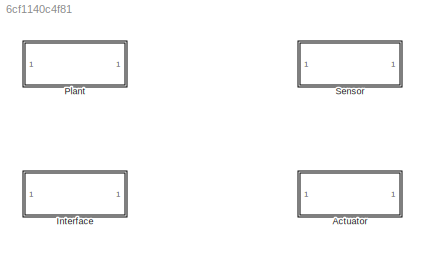
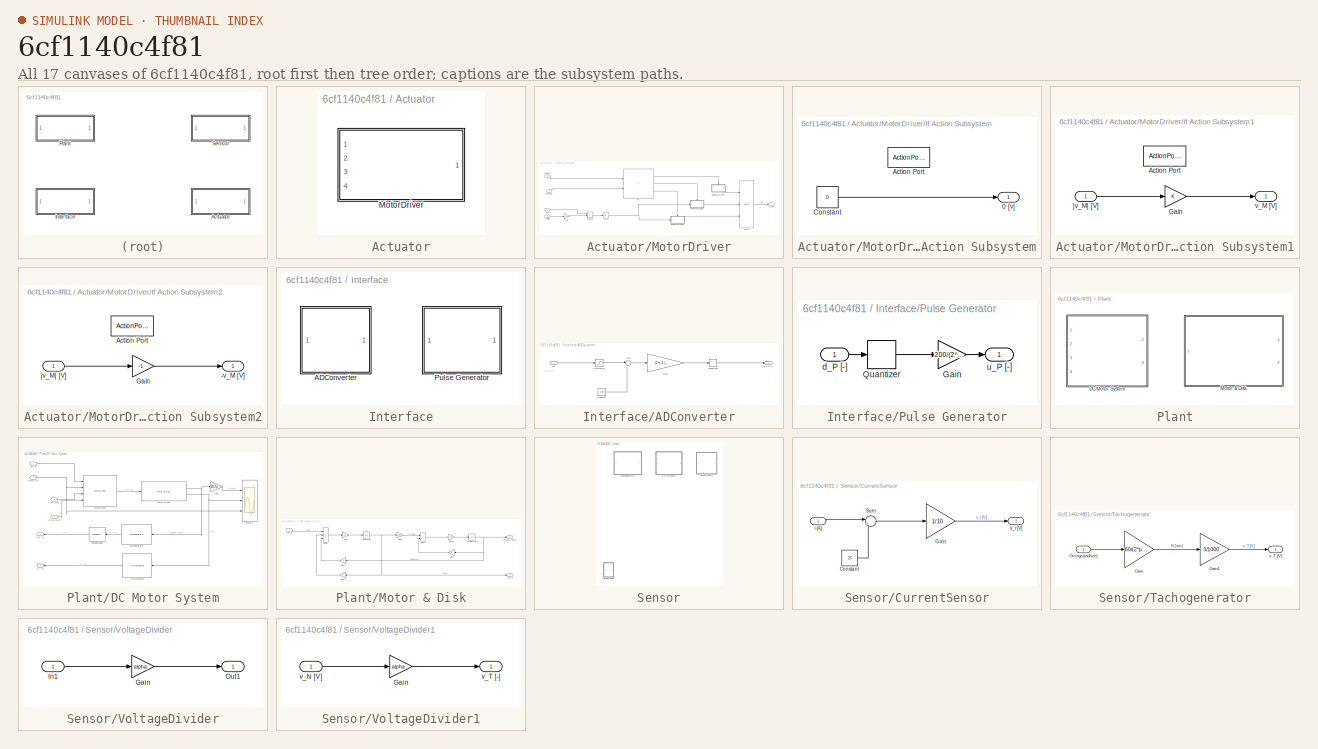
[diagram: thumbnail index - all 17 canvases of the model, root first then tree order]
MODEL slx_6cf1140c4f81
KIND library
CONFIG AbsTol = auto
CONFIG EnableMultiTasking = off
CONFIG FixedStep = auto
CONFIG MaxStep = auto
CONFIG MinStep = auto
CONFIG RelTol = 1e-3
CONFIG SampleTimeConstraint = Unconstrained
CONFIG SolverName = VariableStepAuto
CONFIG StartTime = 0.0
CONFIG StopTime = 10.0
BLOCK [SubSystem] Actuator
  Ports = []
  RequestExecContextInheritance = off
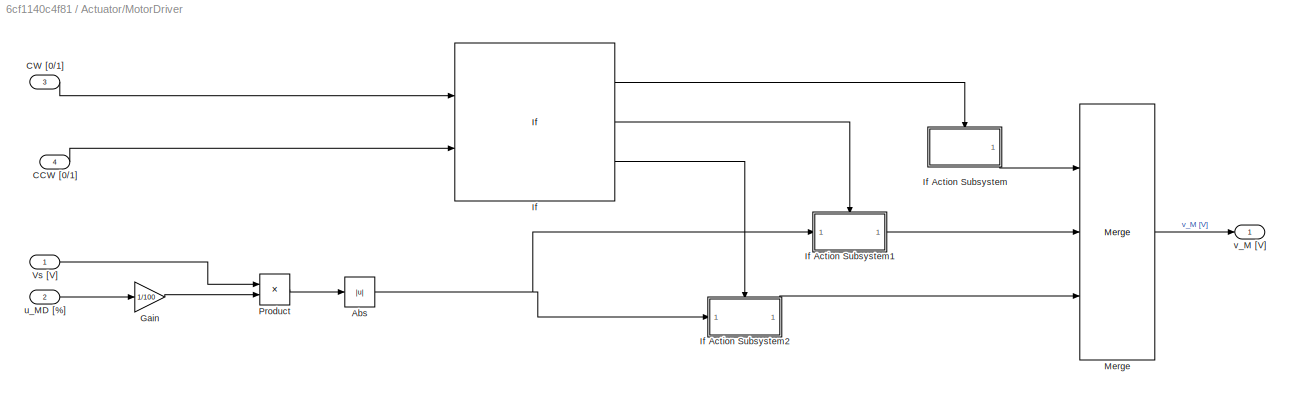
BLOCK [SubSystem] Actuator/MotorDriver
  Ports = [4, 1]
  RequestExecContextInheritance = off
BLOCK [Abs] Actuator/MotorDriver/Abs
  SaturateOnIntegerOverflow = off
BLOCK [Inport] Actuator/MotorDriver/CCW [0//1]
  Port = 4
BLOCK [Inport] Actuator/MotorDriver/CW [0//1]
  Port = 3
BLOCK [Gain] Actuator/MotorDriver/Gain
  Gain = 1/100
BLOCK [If] Actuator/MotorDriver/If
  ElseIfExpressions = u1>u2
  IfExpression = u1==u2
  NumInputs = 2
  Ports = [2, 3]
BLOCK [SubSystem] Actuator/MotorDriver/If Action Subsystem
  Ports = [0, 1, 0, 0, 0, 0, 0, 1]
  RequestExecContextInheritance = off
  TreatAsAtomicUnit = on
BLOCK [Outport] Actuator/MotorDriver/If Action Subsystem/0 [v]
BLOCK [ActionPort] Actuator/MotorDriver/If Action Subsystem/Action Port
BLOCK [Constant] Actuator/MotorDriver/If Action Subsystem/Constant
  Value = 0
BLOCK [SubSystem] Actuator/MotorDriver/If Action Subsystem1
  Ports = [1, 1, 0, 0, 0, 0, 0, 1]
  RequestExecContextInheritance = off
  TreatAsAtomicUnit = on
BLOCK [ActionPort] Actuator/MotorDriver/If Action Subsystem1/Action Port
BLOCK [Gain] Actuator/MotorDriver/If Action Subsystem1/Gain
BLOCK [Outport] Actuator/MotorDriver/If Action Subsystem1/v_M [V]
BLOCK [Inport] Actuator/MotorDriver/If Action Subsystem1/|v_M| [V]
BLOCK [SubSystem] Actuator/MotorDriver/If Action Subsystem2
  Ports = [1, 1, 0, 0, 0, 0, 0, 1]
  RequestExecContextInheritance = off
  TreatAsAtomicUnit = on
BLOCK [Outport] Actuator/MotorDriver/If Action Subsystem2/-v_M [V]
BLOCK [ActionPort] Actuator/MotorDriver/If Action Subsystem2/Action Port
BLOCK [Gain] Actuator/MotorDriver/If Action Subsystem2/Gain
  Gain = -1
BLOCK [Inport] Actuator/MotorDriver/If Action Subsystem2/|v_M| [V]
BLOCK [Merge] Actuator/MotorDriver/Merge
  Inputs = 3
  Ports = [3, 1]
BLOCK [Product] Actuator/MotorDriver/Product
  Ports = [2, 1]
BLOCK [Inport] Actuator/MotorDriver/Vs [V]
BLOCK [Inport] Actuator/MotorDriver/u_MD [%]
  Port = 2
BLOCK [Outport] Actuator/MotorDriver/v_M [V]
BLOCK [SubSystem] Interface
  Ports = []
  RequestExecContextInheritance = off
BLOCK [SubSystem] Interface/ADConverter
  Ports = [1, 1]
  RequestExecContextInheritance = off
BLOCK [Constant] Interface/ADConverter/Constant
  Value = V_min
BLOCK [Gain] Interface/ADConverter/Gain
  Gain = (2^n-1)/(V_max-V_min)
BLOCK [Inport] Interface/ADConverter/In1
BLOCK [Quantizer] Interface/ADConverter/Quantizer
BLOCK [Saturate] Interface/ADConverter/Saturation
  LowerLimit = V_min
  UpperLimit = V_max
BLOCK [Sum] Interface/ADConverter/Sum
  Inputs = |+-
  Ports = [2, 1]
BLOCK [Outport] Interface/ADConverter/d_AD [-]
BLOCK [SubSystem] Interface/Pulse Generator
  Ports = [1, 1]
  RequestExecContextInheritance = off
BLOCK [Gain] Interface/Pulse Generator/Gain
  Gain = 200/(2^n-1)
BLOCK [Quantizer] Interface/Pulse Generator/Quantizer
  QuantizationInterval = 1
BLOCK [Inport] Interface/Pulse Generator/d_P [-]
BLOCK [Outport] Interface/Pulse Generator/u_P [-]
BLOCK [SubSystem] Plant
  Ports = []
  RequestExecContextInheritance = off
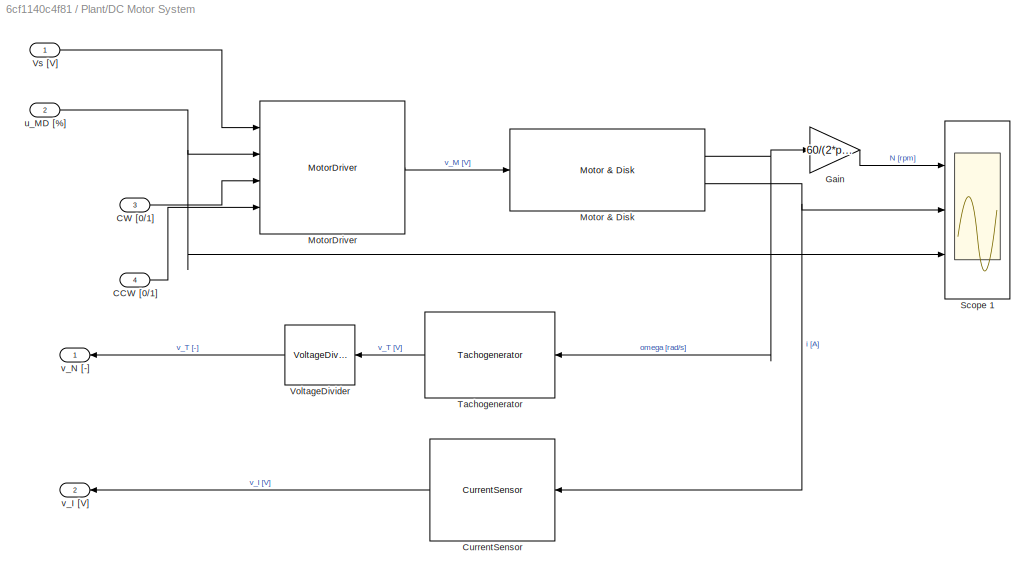
BLOCK [SubSystem] Plant/DC Motor System
  Ports = [4, 2]
  RequestExecContextInheritance = off
BLOCK [Inport] Plant/DC Motor System/CCW [0//1]
  Port = 4
BLOCK [Inport] Plant/DC Motor System/CW [0//1]
  Port = 3
BLOCK [Reference] Plant/DC Motor System/CurrentSensor   REF=$bdroot/Sensor/CurrentSensor
  Ports = [1, 1]
  SourceBlock = $bdroot/Sensor/CurrentSensor
  SourceType = CurrentSensorModel
BLOCK [Gain] Plant/DC Motor System/Gain
  Gain = 60/(2*pi)
BLOCK [Reference] Plant/DC Motor System/Motor & Disk   REF=$bdroot/Plant/Motor & Disk
  Ports = [1, 2]
  SourceBlock = $bdroot/Plant/Motor & Disk
  SourceType = DCMotor&DiskModel
BLOCK [Reference] Plant/DC Motor System/MotorDriver   REF=$bdroot/Actuator/MotorDriver
  Ports = [4, 1]
  SourceBlock = $bdroot/Actuator/MotorDriver
  SourceType = MotorDriverModel
BLOCK [Scope] Plant/DC Motor System/Scope 1
  Floating = off
  NumInputPorts = 3
  Ports = [3]
  ScopeSpecificationString = Simulink.scopes.TimeScopeBlockCfg('CurrentConfiguration', extmgr.ConfigurationSet(extmgr.Configuration('Core','General UI',true),extmgr.Configuration('Core','Source UI',true),extmgr.Configuration('Sources','WiredSimulink',true),extmgr.Configuration('Visuals','Time Domain',true,'SerializedDisplays',{struct('MinYLimReal','-372.58747','MaxYLimReal','3353.28719','YLabelReal','','MinYLimMag',' 0.00000'...<+2634ch>
BLOCK [Reference] Plant/DC Motor System/Tachogenerator   REF=$bdroot/Sensor/Tachogenerator
  Ports = [1, 1]
  SourceBlock = $bdroot/Sensor/Tachogenerator
  SourceType = TachoGeneratorModel
BLOCK [Reference] Plant/DC Motor System/VoltageDivider  REF=$bdroot/Sensor/VoltageDivider
  Ports = [1, 1]
  SourceBlock = $bdroot/Sensor/VoltageDivider
BLOCK [Inport] Plant/DC Motor System/Vs [V]
BLOCK [Inport] Plant/DC Motor System/u_MD [%]
  Port = 2
BLOCK [Outport] Plant/DC Motor System/v_I [V]
  Port = 2
BLOCK [Outport] Plant/DC Motor System/v_N [-]
BLOCK [SubSystem] Plant/Motor & Disk
  Ports = [1, 2]
  RequestExecContextInheritance = off
BLOCK [Gain] Plant/Motor & Disk/Gain
  Gain = 1/L
BLOCK [Gain] Plant/Motor & Disk/Gain1
  Gain = K_tau
BLOCK [Gain] Plant/Motor & Disk/Gain2
  Gain = 1/(J_M+J_I)
BLOCK [Gain] Plant/Motor & Disk/Gain3
  Gain = D
BLOCK [Gain] Plant/Motor & Disk/Gain4
  Gain = K_e
BLOCK [Gain] Plant/Motor & Disk/Gain5
  Gain = R
BLOCK [Integrator] Plant/Motor & Disk/Integrator
  Ports = [1, 1]
BLOCK [Integrator] Plant/Motor & Disk/Integrator1
  Ports = [1, 1]
BLOCK [Sum] Plant/Motor & Disk/Sum
  IconShape = rectangular
  Inputs = +--
  Ports = [3, 1]
BLOCK [Sum] Plant/Motor & Disk/Sum1
  IconShape = rectangular
  Inputs = +-
  Ports = [2, 1]
BLOCK [Outport] Plant/Motor & Disk/i_M[A]
  Port = 2
BLOCK [Outport] Plant/Motor & Disk/omega [rad//s] 
BLOCK [Inport] Plant/Motor & Disk/v_M[V]
BLOCK [SubSystem] Sensor
  Ports = []
  RequestExecContextInheritance = off
BLOCK [SubSystem] Sensor/CurrentSensor
  Ports = [1, 1]
  RequestExecContextInheritance = off
BLOCK [Constant] Sensor/CurrentSensor/Constant
  Value = 25
BLOCK [Gain] Sensor/CurrentSensor/Gain
  Gain = 1/10
BLOCK [Sum] Sensor/CurrentSensor/Sum
  Inputs = |++
  Ports = [2, 1]
BLOCK [Inport] Sensor/CurrentSensor/i [A]
BLOCK [Outport] Sensor/CurrentSensor/v_i [V]
BLOCK [SubSystem] Sensor/Tachogenerator
  Ports = [1, 1]
  RequestExecContextInheritance = off
BLOCK [Gain] Sensor/Tachogenerator/Gain
  Gain = 60/(2*pi)
BLOCK [Gain] Sensor/Tachogenerator/Gain1
  Gain = 3/1000
BLOCK [Inport] Sensor/Tachogenerator/Omega [rad//sec]
BLOCK [Outport] Sensor/Tachogenerator/v_T [V]
BLOCK [SubSystem] Sensor/VoltageDivider
  Ports = [1, 1]
  RequestExecContextInheritance = off
BLOCK [Gain] Sensor/VoltageDivider/Gain
  Gain = alpha
BLOCK [Inport] Sensor/VoltageDivider/In1
BLOCK [Outport] Sensor/VoltageDivider/Out1
BLOCK [SubSystem] Sensor/VoltageDivider1
  Ports = [1, 1]
  RequestExecContextInheritance = off
BLOCK [Gain] Sensor/VoltageDivider1/Gain
  Gain = alpha
BLOCK [Inport] Sensor/VoltageDivider1/v_N [V]
BLOCK [Outport] Sensor/VoltageDivider1/v_T [-]
ANNOTATION Interface/ADConverter: v_in [V}
NET Actuator/MotorDriver/Abs:1 -> Actuator/MotorDriver/If Action Subsystem1:1, Actuator/MotorDriver/If Action Subsystem2:1
LINE Actuator/MotorDriver/CCW [0//1]:1 -> Actuator/MotorDriver/If:2
LINE Actuator/MotorDriver/CW [0//1]:1 -> Actuator/MotorDriver/If:1
LINE Actuator/MotorDriver/Gain:1 -> Actuator/MotorDriver/Product:2
LINE Actuator/MotorDriver/If Action Subsystem/Constant:1 -> Actuator/MotorDriver/If Action Subsystem/0 [v]:1
LINE Actuator/MotorDriver/If Action Subsystem1/Gain:1 -> Actuator/MotorDriver/If Action Subsystem1/v_M [V]:1
LINE Actuator/MotorDriver/If Action Subsystem1/|v_M| [V]:1 -> Actuator/MotorDriver/If Action Subsystem1/Gain:1
LINE Actuator/MotorDriver/If Action Subsystem1:1 -> Actuator/MotorDriver/Merge:2
LINE Actuator/MotorDriver/If Action Subsystem2/Gain:1 -> Actuator/MotorDriver/If Action Subsystem2/-v_M [V]:1
LINE Actuator/MotorDriver/If Action Subsystem2/|v_M| [V]:1 -> Actuator/MotorDriver/If Action Subsystem2/Gain:1
LINE Actuator/MotorDriver/If Action Subsystem2:1 -> Actuator/MotorDriver/Merge:3
LINE Actuator/MotorDriver/If Action Subsystem:1 -> Actuator/MotorDriver/Merge:1
LINE Actuator/MotorDriver/If:1 -> Actuator/MotorDriver/If Action Subsystem:ifaction
LINE Actuator/MotorDriver/If:2 -> Actuator/MotorDriver/If Action Subsystem1:ifaction
LINE Actuator/MotorDriver/If:3 -> Actuator/MotorDriver/If Action Subsystem2:ifaction
LINE Actuator/MotorDriver/Merge:1 -> Actuator/MotorDriver/v_M [V]:1
LINE Actuator/MotorDriver/Product:1 -> Actuator/MotorDriver/Abs:1
LINE Actuator/MotorDriver/Vs [V]:1 -> Actuator/MotorDriver/Product:1
LINE Actuator/MotorDriver/u_MD [%]:1 -> Actuator/MotorDriver/Gain:1
LINE Interface/ADConverter/Constant:1 -> Interface/ADConverter/Sum:2
LINE Interface/ADConverter/Gain:1 -> Interface/ADConverter/Quantizer:1
LINE Interface/ADConverter/In1:1 -> Interface/ADConverter/Saturation:1
LINE Interface/ADConverter/Quantizer:1 -> Interface/ADConverter/d_AD [-]:1
LINE Interface/ADConverter/Saturation:1 -> Interface/ADConverter/Sum:1
LINE Interface/ADConverter/Sum:1 -> Interface/ADConverter/Gain:1
LINE Interface/Pulse Generator/Gain:1 -> Interface/Pulse Generator/u_P [-]:1
LINE Interface/Pulse Generator/Quantizer:1 -> Interface/Pulse Generator/Gain:1
LINE Interface/Pulse Generator/d_P [-]:1 -> Interface/Pulse Generator/Quantizer:1
LINE Plant/DC Motor System/CCW [0//1]:1 -> Plant/DC Motor System/MotorDriver :4
LINE Plant/DC Motor System/CW [0//1]:1 -> Plant/DC Motor System/MotorDriver :3
LINE Plant/DC Motor System/CurrentSensor :1 -> Plant/DC Motor System/v_I [V]:1
LINE Plant/DC Motor System/Gain:1 -> Plant/DC Motor System/Scope 1:1
NET Plant/DC Motor System/Motor & Disk :1 -> Plant/DC Motor System/Gain:1, Plant/DC Motor System/Tachogenerator :1
NET Plant/DC Motor System/Motor & Disk :2 -> Plant/DC Motor System/CurrentSensor :1, Plant/DC Motor System/Scope 1:2
LINE Plant/DC Motor System/MotorDriver :1 -> Plant/DC Motor System/Motor & Disk :1
LINE Plant/DC Motor System/Tachogenerator :1 -> Plant/DC Motor System/VoltageDivider:1
LINE Plant/DC Motor System/VoltageDivider:1 -> Plant/DC Motor System/v_N [-]:1
LINE Plant/DC Motor System/Vs [V]:1 -> Plant/DC Motor System/MotorDriver :1
NET Plant/DC Motor System/u_MD [%]:1 -> Plant/DC Motor System/MotorDriver :2, Plant/DC Motor System/Scope 1:3
LINE Plant/Motor & Disk/Gain1:1 -> Plant/Motor & Disk/Sum1:1
LINE Plant/Motor & Disk/Gain2:1 -> Plant/Motor & Disk/Integrator1:1
LINE Plant/Motor & Disk/Gain3:1 -> Plant/Motor & Disk/Sum1:2
LINE Plant/Motor & Disk/Gain4:1 -> Plant/Motor & Disk/Sum:3
LINE Plant/Motor & Disk/Gain5:1 -> Plant/Motor & Disk/Sum:2
LINE Plant/Motor & Disk/Gain:1 -> Plant/Motor & Disk/Integrator:1
NET Plant/Motor & Disk/Integrator1:1 -> Plant/Motor & Disk/Gain3:1, Plant/Motor & Disk/Gain4:1, Plant/Motor & Disk/omega [rad//s] :1
NET Plant/Motor & Disk/Integrator:1 -> Plant/Motor & Disk/Gain1:1, Plant/Motor & Disk/Gain5:1, Plant/Motor & Disk/i_M[A]:1
LINE Plant/Motor & Disk/Sum1:1 -> Plant/Motor & Disk/Gain2:1
LINE Plant/Motor & Disk/Sum:1 -> Plant/Motor & Disk/Gain:1
LINE Plant/Motor & Disk/v_M[V]:1 -> Plant/Motor & Disk/Sum:1
LINE Sensor/CurrentSensor/Constant:1 -> Sensor/CurrentSensor/Sum:2
LINE Sensor/CurrentSensor/Gain:1 -> Sensor/CurrentSensor/v_i [V]:1
LINE Sensor/CurrentSensor/Sum:1 -> Sensor/CurrentSensor/Gain:1
LINE Sensor/CurrentSensor/i [A]:1 -> Sensor/CurrentSensor/Sum:1
LINE Sensor/Tachogenerator/Gain1:1 -> Sensor/Tachogenerator/v_T [V]:1
LINE Sensor/Tachogenerator/Gain:1 -> Sensor/Tachogenerator/Gain1:1
LINE Sensor/Tachogenerator/Omega [rad//sec]:1 -> Sensor/Tachogenerator/Gain:1
LINE Sensor/VoltageDivider/Gain:1 -> Sensor/VoltageDivider/Out1:1
LINE Sensor/VoltageDivider/In1:1 -> Sensor/VoltageDivider/Gain:1
LINE Sensor/VoltageDivider1/Gain:1 -> Sensor/VoltageDivider1/v_T [-]:1
LINE Sensor/VoltageDivider1/v_N [V]:1 -> Sensor/VoltageDivider1/Gain:1
note: NET lines group one-source signal fan-out (src -> all destinations, sorted); 1:1 wires keep LINE
